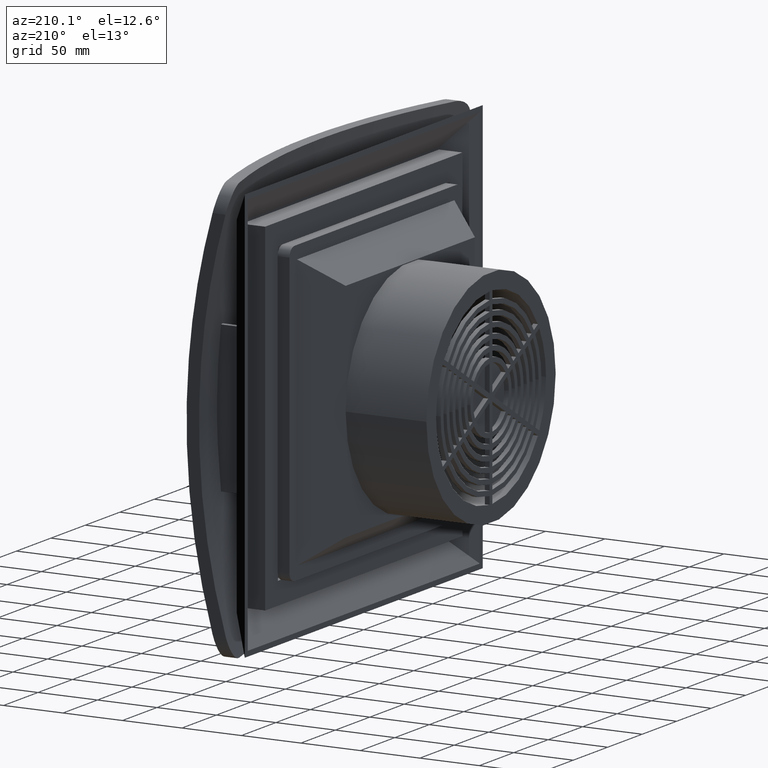
[diagram: clean part render]
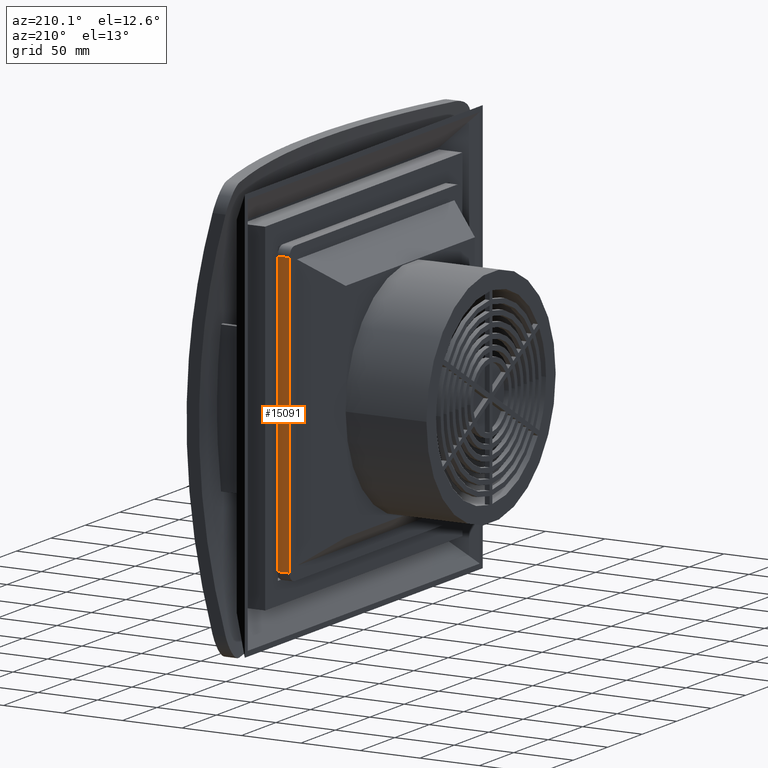
[diagram: same view with one face highlighted and labeled with its STEP entity id]
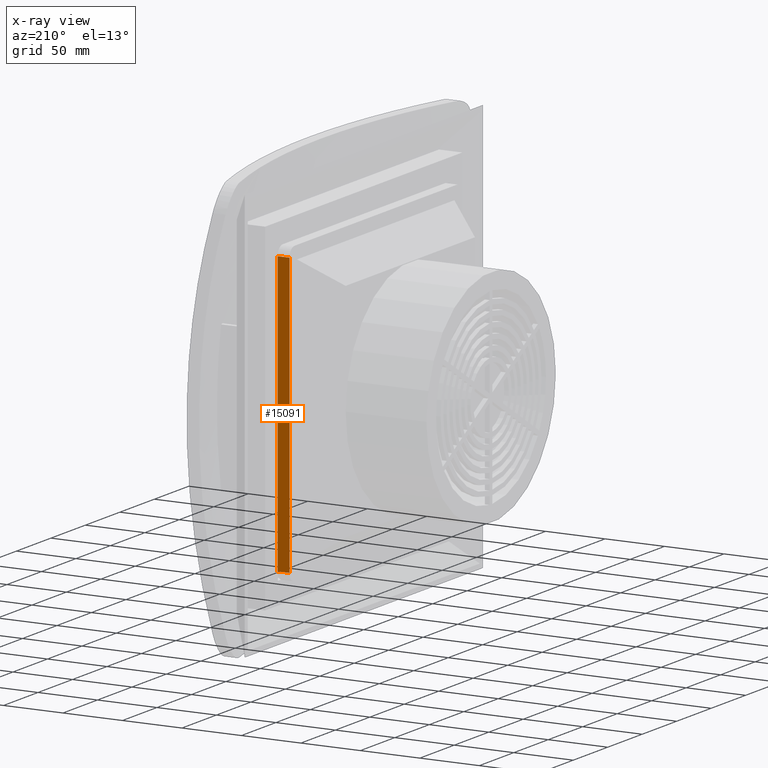
[diagram: x-ray of the same camera — body ghosted, the highlighted face saturated]
A machine part, auxiliary view. The second image highlights one B-rep face of the part: STEP entity #15091.
The next image is the same camera in x-ray: the body ghosted, the highlighted face saturated — about 0% of this face is hidden behind the body in this view.
In plain terms, the highlighted planar face has unit normal (0, 1, 0).
Its self-contained STEP definition (entity closure, byte-faithful):
#868 = ORIENTED_EDGE ( 'NONE', *, *, #4422, .T. ) ;
#1124 = LINE ( 'NONE', #8519, #7261 ) ;
#1358 = DIRECTION ( 'NONE',  ( 1.000000000000000000, -1.224606353822379970E-16, 6.123031769111889989E-17 ) ) ;
#2180 = AXIS2_PLACEMENT_3D ( 'NONE', #9861, #5097, #10019 ) ;
#3190 = LINE ( 'NONE', #15266, #9009 ) ;
#3785 = CARTESIAN_POINT ( 'NONE',  ( 8.859110925781968561E-16, 4.921259842519683403, 4.625984251968504601 ) ) ;
#3816 = DIRECTION ( 'NONE',  ( 0.000000000000000000, -2.426454842681659807E-16, 1.000000000000000000 ) ) ;
#4157 = EDGE_CURVE ( 'NONE', #8634, #5769, #3190, .T. ) ;
#4422 = EDGE_CURVE ( 'NONE', #10690, #7622, #6648, .T. ) ;
#4896 = DIRECTION ( 'NONE',  ( 1.000000000000000000, -1.224606353822379970E-16, -2.971452017611044151E-32 ) ) ;
#5097 = DIRECTION ( 'NONE',  ( 1.224606353822379970E-16, 1.000000000000000000, 2.426454842681659807E-16 ) ) ;
#5550 = VECTOR ( 'NONE', #4896, 39.37007874015748143 ) ;
#5769 = VERTEX_POINT ( 'NONE', #14215 ) ;
#6648 = LINE ( 'NONE', #7548, #15357 ) ;
#7261 = VECTOR ( 'NONE', #1358, 39.37007874015748143 ) ;
#7447 = CARTESIAN_POINT ( 'NONE',  ( -0.3937007874015740483, 4.921259842519685179, -4.625984251968504601 ) ) ;
#7548 = CARTESIAN_POINT ( 'NONE',  ( -0.3937007874015740483, 4.921259842519685179, -4.625984251968504601 ) ) ;
#7622 = VERTEX_POINT ( 'NONE', #8601 ) ;
#8519 = CARTESIAN_POINT ( 'NONE',  ( 8.859110925781962645E-16, 4.921259842519685179, -4.625984251968504601 ) ) ;
#8601 = CARTESIAN_POINT ( 'NONE',  ( -0.3937007874015742148, 4.921259842519683403, 4.625984251968504601 ) ) ;
#8634 = VERTEX_POINT ( 'NONE', #12086 ) ;
#9009 = VECTOR ( 'NONE', #13917, 39.37007874015748143 ) ;
#9556 = ORIENTED_EDGE ( 'NONE', *, *, #4157, .T. ) ;
#9861 = CARTESIAN_POINT ( 'NONE',  ( 8.859110925781968561E-16, 4.921259842519685179, -4.625984251968504601 ) ) ;
#10019 = DIRECTION ( 'NONE',  ( 0.000000000000000000, -2.426454842681659807E-16, 1.000000000000000000 ) ) ;
#10690 = VERTEX_POINT ( 'NONE', #7447 ) ;
#10927 = LINE ( 'NONE', #3785, #5550 ) ;
#11044 = FACE_OUTER_BOUND ( 'NONE', #13821, .T. ) ;
#11389 = EDGE_CURVE ( 'NONE', #7622, #8634, #10927, .T. ) ;
#11638 = ORIENTED_EDGE ( 'NONE', *, *, #11389, .T. ) ;
#12086 = CARTESIAN_POINT ( 'NONE',  ( 9.196600865811748749E-16, 4.921259842519684291, 4.625984251968504601 ) ) ;
#12953 = ORIENTED_EDGE ( 'NONE', *, *, #15024, .F. ) ;
#13512 = PLANE ( 'NONE',  #2180 ) ;
#13821 = EDGE_LOOP ( 'NONE', ( #9556, #12953, #868, #11638 ) ) ;
#13917 = DIRECTION ( 'NONE',  ( 6.123031769111889989E-17, -1.499660721822135524E-32, -1.000000000000000000 ) ) ;
#14215 = CARTESIAN_POINT ( 'NONE',  ( 1.187241396176221474E-15, 4.921259842519685179, -4.625984251968504601 ) ) ;
#15024 = EDGE_CURVE ( 'NONE', #10690, #5769, #1124, .T. ) ;
#15091 = ADVANCED_FACE ( 'NONE', ( #11044 ), #13512, .T. ) ;
#15266 = CARTESIAN_POINT ( 'NONE',  ( 1.205321214392101231E-15, 4.921259842519685179, 9.409477889450157238E-16 ) ) ;
#15357 = VECTOR ( 'NONE', #3816, 39.37007874015748143 ) ;